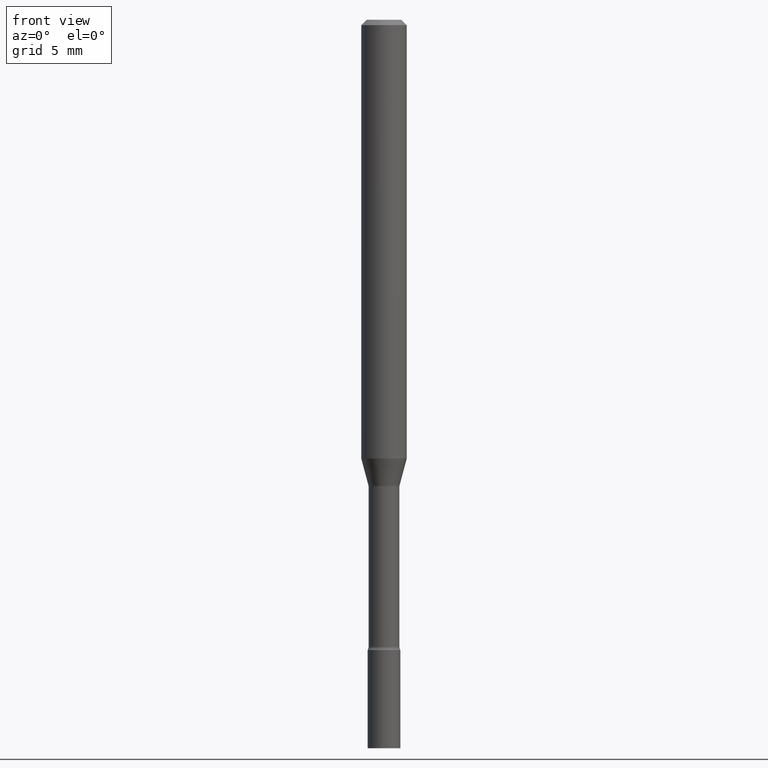
[diagram: clean part render]
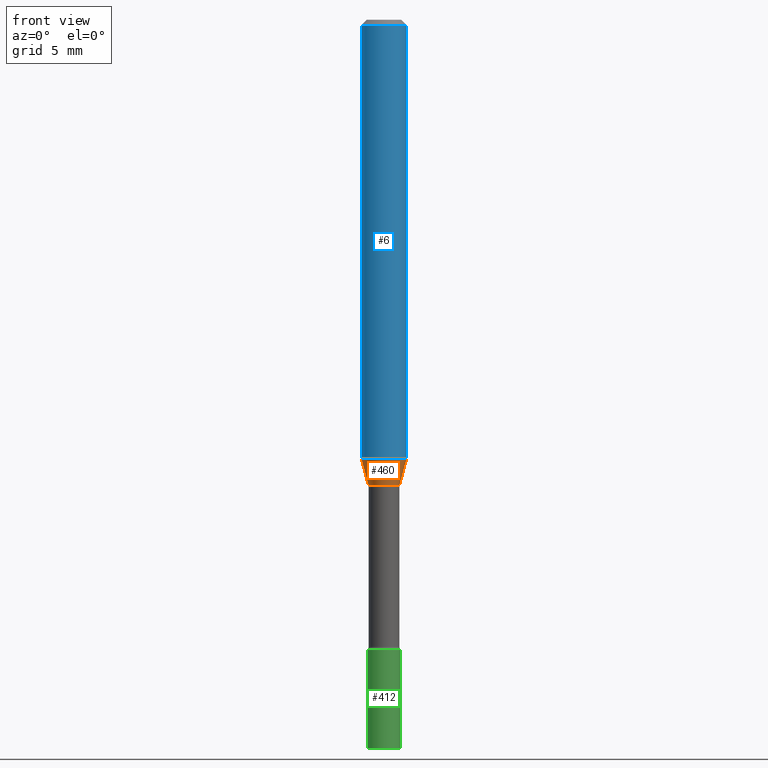
[diagram: same view with three faces highlighted in distinct colors, each labeled with its STEP entity id]
A machine part, front view with three faces highlighted in distinct colors.
Their STEP definitions:

[orange] entity #460 — the highlighted conical surface has half-angle 15 deg.
#15 = AXIS2_PLACEMENT_3D ( 'NONE', #57, #413, #370 ) ;
#20 = CARTESIAN_POINT ( 'NONE',  ( 2.945842472490219307E-29, -4.205882321564354559E-15, -1.204612573687108945 ) ) ;
#23 = VECTOR ( 'NONE', #64, 39.37007874015747433 ) ;
#38 = VERTEX_POINT ( 'NONE', #504 ) ;
#46 = CIRCLE ( 'NONE', #71, 0.06250000000000000000 ) ;
#47 = CARTESIAN_POINT ( 'NONE',  ( 0.04281111260566398957, -4.761384520821189262E-15, -1.278092501787273072 ) ) ;
#49 = EDGE_CURVE ( 'NONE', #38, #292, #182, .T. ) ;
#50 = FACE_OUTER_BOUND ( 'NONE', #373, .T. ) ;
#57 = CARTESIAN_POINT ( 'NONE',  ( 3.125535344539897452E-29, -4.462436119305612978E-15, -1.278092501787273072 ) ) ;
#64 = DIRECTION ( 'NONE',  ( -0.2588190451025213501, 5.211531920934551042E-15, 0.9659258262890682012 ) ) ;
#65 = EDGE_CURVE ( 'NONE', #292, #390, #46, .T. ) ;
#71 = AXIS2_PLACEMENT_3D ( 'NONE', #20, #385, #224 ) ;
#85 = CIRCLE ( 'NONE', #350, 0.04281111260566398957 ) ;
#114 = DIRECTION ( 'NONE',  ( 1.000000000000000000, -6.982962677686265133E-15, 0.000000000000000000 ) ) ;
#121 = CARTESIAN_POINT ( 'NONE',  ( 3.125535344539897452E-29, -4.462436119305612978E-15, -1.278092501787273072 ) ) ;
#140 = CARTESIAN_POINT ( 'NONE',  ( -0.04281111260566398957, -4.158244868587991251E-15, -1.278092501787273072 ) ) ;
#170 = ORIENTED_EDGE ( 'NONE', *, *, #227, .T. ) ;
#182 = LINE ( 'NONE', #140, #23 ) ;
#189 = EDGE_CURVE ( 'NONE', #327, #390, #271, .T. ) ;
#192 = DIRECTION ( 'NONE',  ( -2.445468806185136597E-29, 3.491481338843145583E-15, 1.000000000000000000 ) ) ;
#199 = DIRECTION ( 'NONE',  ( 0.2588190451025213501, 1.565188264969621968E-15, 0.9659258262890682012 ) ) ;
#208 = ORIENTED_EDGE ( 'NONE', *, *, #65, .F. ) ;
#224 = DIRECTION ( 'NONE',  ( 1.000000000000000000, -6.982962677686270655E-15, 0.000000000000000000 ) ) ;
#227 = EDGE_CURVE ( 'NONE', #38, #327, #85, .T. ) ;
#242 = CARTESIAN_POINT ( 'NONE',  ( 0.06250000000000000000, -4.642317488919745439E-15, -1.204612573687108945 ) ) ;
#271 = LINE ( 'NONE', #47, #286 ) ;
#286 = VECTOR ( 'NONE', #199, 39.37007874015747433 ) ;
#292 = VERTEX_POINT ( 'NONE', #479 ) ;
#327 = VERTEX_POINT ( 'NONE', #355 ) ;
#350 = AXIS2_PLACEMENT_3D ( 'NONE', #121, #192, #114 ) ;
#355 = CARTESIAN_POINT ( 'NONE',  ( 0.04281111260566398957, -4.761384520821189262E-15, -1.278092501787273072 ) ) ;
#370 = DIRECTION ( 'NONE',  ( 1.000000000000000000, -6.982962677686265133E-15, 0.000000000000000000 ) ) ;
#373 = EDGE_LOOP ( 'NONE', ( #520, #170, #434, #208 ) ) ;
#385 = DIRECTION ( 'NONE',  ( -2.445468806185136597E-29, 3.491481338843145583E-15, 1.000000000000000000 ) ) ;
#390 = VERTEX_POINT ( 'NONE', #242 ) ;
#392 = CONICAL_SURFACE ( 'NONE', #15, 0.04281111260566398957, 0.2617993877991500740 ) ;
#413 = DIRECTION ( 'NONE',  ( -2.445468806185136597E-29, 3.491481338843145583E-15, 1.000000000000000000 ) ) ;
#434 = ORIENTED_EDGE ( 'NONE', *, *, #189, .T. ) ;
#460 = ADVANCED_FACE ( 'NONE', ( #50 ), #392, .T. ) ;
#479 = CARTESIAN_POINT ( 'NONE',  ( -0.06250000000000000000, -3.761793111714291154E-15, -1.204612573687108945 ) ) ;
#504 = CARTESIAN_POINT ( 'NONE',  ( -0.04281111260566398957, -3.960018990151141202E-15, -1.278092501787273072 ) ) ;
#520 = ORIENTED_EDGE ( 'NONE', *, *, #49, .F. ) ;

[blue] entity #6 — the highlighted cylindrical surface (edge-blend (fillet) strip) has radius 1.5875 mm, axis along (-0, 0, 1).
#6 = ADVANCED_FACE ( 'NONE', ( #178 ), #387, .T. ) ;
#8 = EDGE_LOOP ( 'NONE', ( #40, #136, #484, #93 ) ) ;
#20 = CARTESIAN_POINT ( 'NONE',  ( 2.945842472490219307E-29, -4.205882321564354559E-15, -1.204612573687108945 ) ) ;
#40 = ORIENTED_EDGE ( 'NONE', *, *, #431, .F. ) ;
#46 = CIRCLE ( 'NONE', #71, 0.06250000000000000000 ) ;
#65 = EDGE_CURVE ( 'NONE', #292, #390, #46, .T. ) ;
#71 = AXIS2_PLACEMENT_3D ( 'NONE', #20, #385, #224 ) ;
#88 = LINE ( 'NONE', #128, #280 ) ;
#93 = ORIENTED_EDGE ( 'NONE', *, *, #347, .F. ) ;
#123 = DIRECTION ( 'NONE',  ( 1.000000000000000000, -6.982962677686266711E-15, 0.000000000000000000 ) ) ;
#128 = CARTESIAN_POINT ( 'NONE',  ( -0.06250000000000000000, 4.440892098500626162E-16, -3.074334431409316114E-30 ) ) ;
#136 = ORIENTED_EDGE ( 'NONE', *, *, #65, .T. ) ;
#178 = FACE_OUTER_BOUND ( 'NONE', #8, .T. ) ;
#200 = DIRECTION ( 'NONE',  ( -2.445468806185136877E-29, 3.491481338843145188E-15, 1.000000000000000000 ) ) ;
#220 = AXIS2_PLACEMENT_3D ( 'NONE', #263, #305, #423 ) ;
#224 = DIRECTION ( 'NONE',  ( 1.000000000000000000, -6.982962677686270655E-15, 0.000000000000000000 ) ) ;
#242 = CARTESIAN_POINT ( 'NONE',  ( 0.06250000000000000000, -4.642317488919745439E-15, -1.204612573687108945 ) ) ;
#263 = CARTESIAN_POINT ( 'NONE',  ( 0.000000000000000000, 0.000000000000000000, 0.000000000000000000 ) ) ;
#273 = DIRECTION ( 'NONE',  ( -2.445468806185136877E-29, 3.491481338843145188E-15, 1.000000000000000000 ) ) ;
#279 = VECTOR ( 'NONE', #273, 39.37007874015748143 ) ;
#280 = VECTOR ( 'NONE', #200, 39.37007874015748143 ) ;
#283 = EDGE_CURVE ( 'NONE', #390, #517, #317, .T. ) ;
#292 = VERTEX_POINT ( 'NONE', #479 ) ;
#305 = DIRECTION ( 'NONE',  ( -2.445468806185136597E-29, 3.491481338843145583E-15, 1.000000000000000000 ) ) ;
#317 = LINE ( 'NONE', #439, #279 ) ;
#321 = DIRECTION ( 'NONE',  ( -2.445468806185136597E-29, 3.491481338843145583E-15, 1.000000000000000000 ) ) ;
#347 = EDGE_CURVE ( 'NONE', #490, #517, #502, .T. ) ;
#362 = CARTESIAN_POINT ( 'NONE',  ( 3.668203209277712094E-31, -5.237222008264728876E-17, -0.01500000000000003067 ) ) ;
#385 = DIRECTION ( 'NONE',  ( -2.445468806185136597E-29, 3.491481338843145583E-15, 1.000000000000000000 ) ) ;
#387 = CYLINDRICAL_SURFACE ( 'NONE', #220, 0.06250000000000000000 ) ;
#390 = VERTEX_POINT ( 'NONE', #242 ) ;
#423 = DIRECTION ( 'NONE',  ( 1.000000000000000000, -6.982962677686266711E-15, 4.876176775795935793E-29 ) ) ;
#431 = EDGE_CURVE ( 'NONE', #292, #490, #88, .T. ) ;
#439 = CARTESIAN_POINT ( 'NONE',  ( 0.06250000000000000000, -4.364351673553916694E-16, 3.047610484872459871E-30 ) ) ;
#450 = CARTESIAN_POINT ( 'NONE',  ( -0.06250000000000000000, -1.685038060973438203E-15, -0.01500000000000003067 ) ) ;
#479 = CARTESIAN_POINT ( 'NONE',  ( -0.06250000000000000000, -3.761793111714291154E-15, -1.204612573687108945 ) ) ;
#484 = ORIENTED_EDGE ( 'NONE', *, *, #283, .T. ) ;
#490 = VERTEX_POINT ( 'NONE', #450 ) ;
#500 = CARTESIAN_POINT ( 'NONE',  ( 0.06250000000000000000, -4.888073874380389458E-16, -0.01500000000000003067 ) ) ;
#502 = CIRCLE ( 'NONE', #519, 0.06250000000000000000 ) ;
#517 = VERTEX_POINT ( 'NONE', #500 ) ;
#519 = AXIS2_PLACEMENT_3D ( 'NONE', #362, #321, #123 ) ;

[green] entity #412 — the highlighted cylindrical surface (edge-blend (fillet) strip) has radius 1.143 mm, axis along (-0, 0, 1).
#31 = CARTESIAN_POINT ( 'NONE',  ( 0.04499999999999999833, -6.354496036694523059E-15, -1.729999999999999760 ) ) ;
#36 = ORIENTED_EDGE ( 'NONE', *, *, #469, .F. ) ;
#42 = EDGE_CURVE ( 'NONE', #225, #414, #420, .T. ) ;
#51 = AXIS2_PLACEMENT_3D ( 'NONE', #131, #95, #447 ) ;
#55 = CARTESIAN_POINT ( 'NONE',  ( 4.230661034700285954E-29, -6.040262716198641373E-15, -1.729999999999999760 ) ) ;
#76 = CARTESIAN_POINT ( 'NONE',  ( -0.04499999999999999833, -6.191868465850420113E-15, -2.000000000000000000 ) ) ;
#86 = AXIS2_PLACEMENT_3D ( 'NONE', #205, #406, #172 ) ;
#95 = DIRECTION ( 'NONE',  ( -2.445468806185136597E-29, 3.491481338843145583E-15, 1.000000000000000000 ) ) ;
#99 = VERTEX_POINT ( 'NONE', #506 ) ;
#115 = ORIENTED_EDGE ( 'NONE', *, *, #42, .F. ) ;
#129 = DIRECTION ( 'NONE',  ( -2.445468806185136597E-29, 3.491481338843145583E-15, 1.000000000000000000 ) ) ;
#131 = CARTESIAN_POINT ( 'NONE',  ( 0.000000000000000000, 0.000000000000000000, 0.000000000000000000 ) ) ;
#141 = AXIS2_PLACEMENT_3D ( 'NONE', #55, #129, #372 ) ;
#157 = VECTOR ( 'NONE', #239, 39.37007874015748143 ) ;
#158 = VERTEX_POINT ( 'NONE', #31 ) ;
#162 = CARTESIAN_POINT ( 'NONE',  ( -0.04499999999999999833, -6.191868465850420113E-15, -1.729999999999999760 ) ) ;
#165 = ORIENTED_EDGE ( 'NONE', *, *, #243, .T. ) ;
#172 = DIRECTION ( 'NONE',  ( 1.000000000000000000, -6.982962677686269077E-15, 0.000000000000000000 ) ) ;
#205 = CARTESIAN_POINT ( 'NONE',  ( 4.890937612370273194E-29, -6.982962677686291165E-15, -2.000000000000000000 ) ) ;
#209 = FACE_OUTER_BOUND ( 'NONE', #289, .T. ) ;
#225 = VERTEX_POINT ( 'NONE', #76 ) ;
#239 = DIRECTION ( 'NONE',  ( -2.445468806185136877E-29, 3.491481338843145188E-15, 1.000000000000000000 ) ) ;
#243 = EDGE_CURVE ( 'NONE', #99, #158, #485, .T. ) ;
#247 = ORIENTED_EDGE ( 'NONE', *, *, #452, .T. ) ;
#281 = CYLINDRICAL_SURFACE ( 'NONE', #51, 0.04499999999999999833 ) ;
#289 = EDGE_LOOP ( 'NONE', ( #115, #247, #165, #36 ) ) ;
#299 = DIRECTION ( 'NONE',  ( -2.445468806185136877E-29, 3.491481338843145188E-15, 1.000000000000000000 ) ) ;
#349 = CARTESIAN_POINT ( 'NONE',  ( -0.04499999999999999833, 3.197442310920450718E-16, -2.213520790614707560E-30 ) ) ;
#372 = DIRECTION ( 'NONE',  ( 1.000000000000000000, -6.982962677686269077E-15, 0.000000000000000000 ) ) ;
#377 = CIRCLE ( 'NONE', #141, 0.04499999999999999833 ) ;
#400 = VECTOR ( 'NONE', #299, 39.37007874015748143 ) ;
#406 = DIRECTION ( 'NONE',  ( -2.445468806185136597E-29, 3.491481338843145583E-15, 1.000000000000000000 ) ) ;
#412 = ADVANCED_FACE ( 'NONE', ( #209 ), #281, .T. ) ;
#414 = VERTEX_POINT ( 'NONE', #162 ) ;
#420 = LINE ( 'NONE', #349, #400 ) ;
#433 = CARTESIAN_POINT ( 'NONE',  ( 0.04499999999999999833, -3.142333204958819823E-16, 2.194279549108170967E-30 ) ) ;
#447 = DIRECTION ( 'NONE',  ( 1.000000000000000000, -6.982962677686266711E-15, 4.876176775795935793E-29 ) ) ;
#452 = EDGE_CURVE ( 'NONE', #225, #99, #495, .T. ) ;
#469 = EDGE_CURVE ( 'NONE', #414, #158, #377, .T. ) ;
#485 = LINE ( 'NONE', #433, #157 ) ;
#495 = CIRCLE ( 'NONE', #86, 0.04499999999999999833 ) ;
#506 = CARTESIAN_POINT ( 'NONE',  ( 0.04499999999999999833, -7.297195998182173641E-15, -2.000000000000000000 ) ) ;